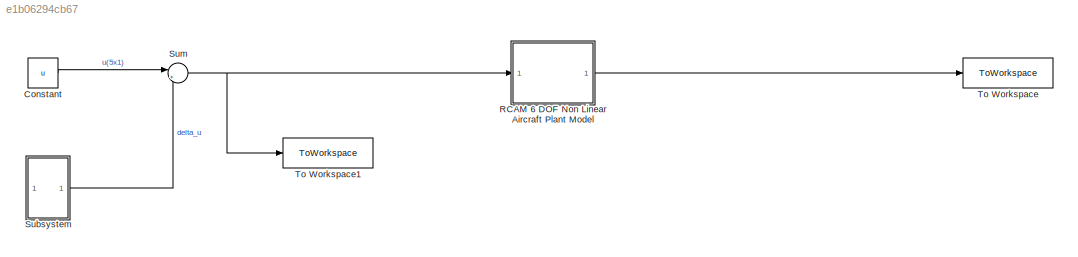
MODEL slx_e1b06294cb67
KIND model
CONFIG AbsTol = auto
CONFIG EnableMultiTasking = off
CONFIG FixedStep = auto
CONFIG MaxStep = auto
CONFIG MinStep = auto
CONFIG RelTol = 1e-3
CONFIG SampleTimeConstraint = Unconstrained
CONFIG SolverName = VariableStepAuto
CONFIG StartTime = 0.0
CONFIG StopTime = TF
BLOCK [Constant] Constant
  Value = u
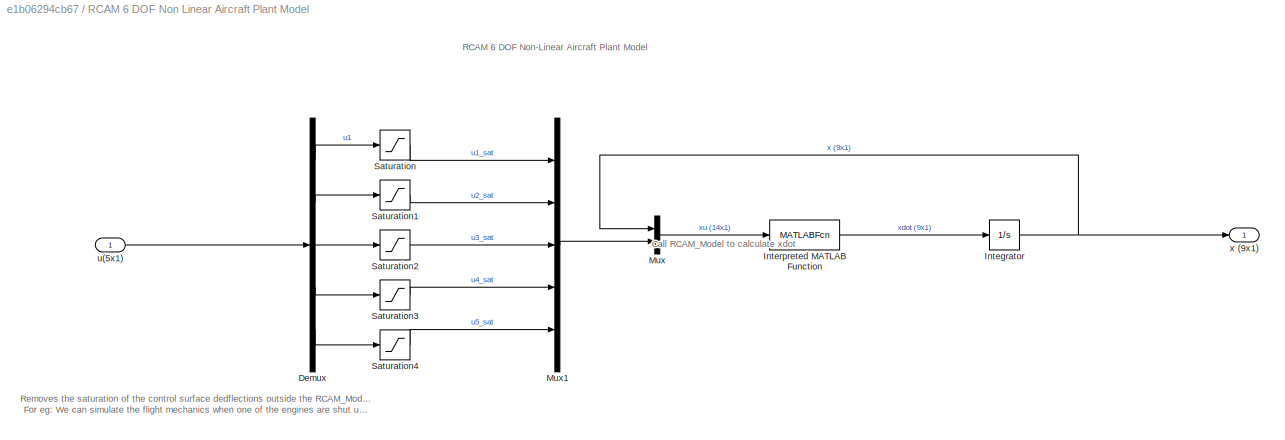
BLOCK [SubSystem] RCAM 6 DOF Non Linear Aircraft Plant Model 
BLOCK [Demux] RCAM 6 DOF Non Linear Aircraft Plant Model /Demux
  Outputs = 5
BLOCK [Integrator] RCAM 6 DOF Non Linear Aircraft Plant Model /Integrator
  InitialCondition = x0
BLOCK [MATLABFcn] RCAM 6 DOF Non Linear Aircraft Plant Model /Interpreted MATLAB Function
  MATLABFcn = RCAM_model(u(1:9),u(10:14))
BLOCK [Mux] RCAM 6 DOF Non Linear Aircraft Plant Model /Mux
  DisplayOption = bar
  Inputs = 2
BLOCK [Mux] RCAM 6 DOF Non Linear Aircraft Plant Model /Mux1
  DisplayOption = bar
  Inputs = 5
BLOCK [Saturate] RCAM 6 DOF Non Linear Aircraft Plant Model /Saturation
  LowerLimit = umin(1)
  UpperLimit = umax(1)
BLOCK [Saturate] RCAM 6 DOF Non Linear Aircraft Plant Model /Saturation1
  LowerLimit = umin(2)
  UpperLimit = umax(2)
BLOCK [Saturate] RCAM 6 DOF Non Linear Aircraft Plant Model /Saturation2
  LowerLimit = umin(3)
  UpperLimit = umax(3)
BLOCK [Saturate] RCAM 6 DOF Non Linear Aircraft Plant Model /Saturation3
  LowerLimit = umin(4)
  UpperLimit = umax(4)
BLOCK [Saturate] RCAM 6 DOF Non Linear Aircraft Plant Model /Saturation4
  LowerLimit = umin(5)
  UpperLimit = umax(5)
BLOCK [Inport] RCAM 6 DOF Non Linear Aircraft Plant Model /u(5x1)
BLOCK [Outport] RCAM 6 DOF Non Linear Aircraft Plant Model /x (9x1)
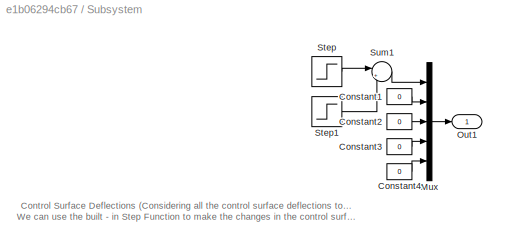
BLOCK [SubSystem] Subsystem
BLOCK [Constant] Subsystem/Constant1
  Value = 0
BLOCK [Constant] Subsystem/Constant2
  Value = 0
BLOCK [Constant] Subsystem/Constant3
  Value = 0
BLOCK [Constant] Subsystem/Constant4
  Value = 0
BLOCK [Mux] Subsystem/Mux
  DisplayOption = bar
  Inputs = 5
BLOCK [Outport] Subsystem/Out1
BLOCK [Step] Subsystem/Step
  After = 0
  SampleTime = 0
  Time = 30
BLOCK [Step] Subsystem/Step1
  After = 0
  SampleTime = 0
  Time = 30+2
BLOCK [Sum] Subsystem/Sum1
  Inputs = |++
BLOCK [Sum] Sum
  Inputs = |++
BLOCK [ToWorkspace] To Workspace
  FixptAsFi = on
  MaxDataPoints = inf
  SampleTime = -1
  SaveFormat = Timeseries
  VariableName = simX
BLOCK [ToWorkspace] To Workspace1
  FixptAsFi = on
  MaxDataPoints = inf
  SampleTime = -1
  SaveFormat = Timeseries
  VariableName = simU
ANNOTATION RCAM 6 DOF Non Linear Aircraft Plant Model : Removes the saturation of the control surface dedflections outside the RCAM_Model to make it easier for the user to understand. For eg: We can simulate the flight mechanics when one of the engines are shut using the simulink block above.
ANNOTATION RCAM 6 DOF Non Linear Aircraft Plant Model : RCAM 6 DOF Non-Linear Aircraft Plant Model
ANNOTATION RCAM 6 DOF Non Linear Aircraft Plant Model : Call RCAM_Model to calculate xdot
ANNOTATION Subsystem: Control Surface Deflections (Considering all the control surface deflections to be constant for time being) We can use the built - in Step Function to make the changes in the control surface deflection with respect to time.
LINE Constant:1 -> Sum:1
LINE RCAM 6 DOF Non Linear Aircraft Plant Model /Demux:1 -> RCAM 6 DOF Non Linear Aircraft Plant Model /Saturation:1
LINE RCAM 6 DOF Non Linear Aircraft Plant Model /Demux:2 -> RCAM 6 DOF Non Linear Aircraft Plant Model /Saturation1:1
LINE RCAM 6 DOF Non Linear Aircraft Plant Model /Demux:3 -> RCAM 6 DOF Non Linear Aircraft Plant Model /Saturation2:1
LINE RCAM 6 DOF Non Linear Aircraft Plant Model /Demux:4 -> RCAM 6 DOF Non Linear Aircraft Plant Model /Saturation3:1
LINE RCAM 6 DOF Non Linear Aircraft Plant Model /Demux:5 -> RCAM 6 DOF Non Linear Aircraft Plant Model /Saturation4:1
NET RCAM 6 DOF Non Linear Aircraft Plant Model /Integrator:1 -> RCAM 6 DOF Non Linear Aircraft Plant Model /Mux:1, RCAM 6 DOF Non Linear Aircraft Plant Model /x (9x1):1
LINE RCAM 6 DOF Non Linear Aircraft Plant Model /Interpreted MATLAB Function:1 -> RCAM 6 DOF Non Linear Aircraft Plant Model /Integrator:1
LINE RCAM 6 DOF Non Linear Aircraft Plant Model /Mux1:1 -> RCAM 6 DOF Non Linear Aircraft Plant Model /Mux:2
LINE RCAM 6 DOF Non Linear Aircraft Plant Model /Mux:1 -> RCAM 6 DOF Non Linear Aircraft Plant Model /Interpreted MATLAB Function:1
LINE RCAM 6 DOF Non Linear Aircraft Plant Model /Saturation1:1 -> RCAM 6 DOF Non Linear Aircraft Plant Model /Mux1:2
LINE RCAM 6 DOF Non Linear Aircraft Plant Model /Saturation2:1 -> RCAM 6 DOF Non Linear Aircraft Plant Model /Mux1:3
LINE RCAM 6 DOF Non Linear Aircraft Plant Model /Saturation3:1 -> RCAM 6 DOF Non Linear Aircraft Plant Model /Mux1:4
LINE RCAM 6 DOF Non Linear Aircraft Plant Model /Saturation4:1 -> RCAM 6 DOF Non Linear Aircraft Plant Model /Mux1:5
LINE RCAM 6 DOF Non Linear Aircraft Plant Model /Saturation:1 -> RCAM 6 DOF Non Linear Aircraft Plant Model /Mux1:1
LINE RCAM 6 DOF Non Linear Aircraft Plant Model /u(5x1):1 -> RCAM 6 DOF Non Linear Aircraft Plant Model /Demux:1
LINE RCAM 6 DOF Non Linear Aircraft Plant Model :1 -> To Workspace:1
LINE Subsystem/Constant1:1 -> Subsystem/Mux:2
LINE Subsystem/Constant2:1 -> Subsystem/Mux:3
LINE Subsystem/Constant3:1 -> Subsystem/Mux:4
LINE Subsystem/Constant4:1 -> Subsystem/Mux:5
LINE Subsystem/Mux:1 -> Subsystem/Out1:1
LINE Subsystem/Step1:1 -> Subsystem/Sum1:2
LINE Subsystem/Step:1 -> Subsystem/Sum1:1
LINE Subsystem/Sum1:1 -> Subsystem/Mux:1
LINE Subsystem:1 -> Sum:2
NET Sum:1 -> RCAM 6 DOF Non Linear Aircraft Plant Model :1, To Workspace1:1
note: NET lines group one-source signal fan-out (src -> all destinations, sorted); 1:1 wires keep LINE
